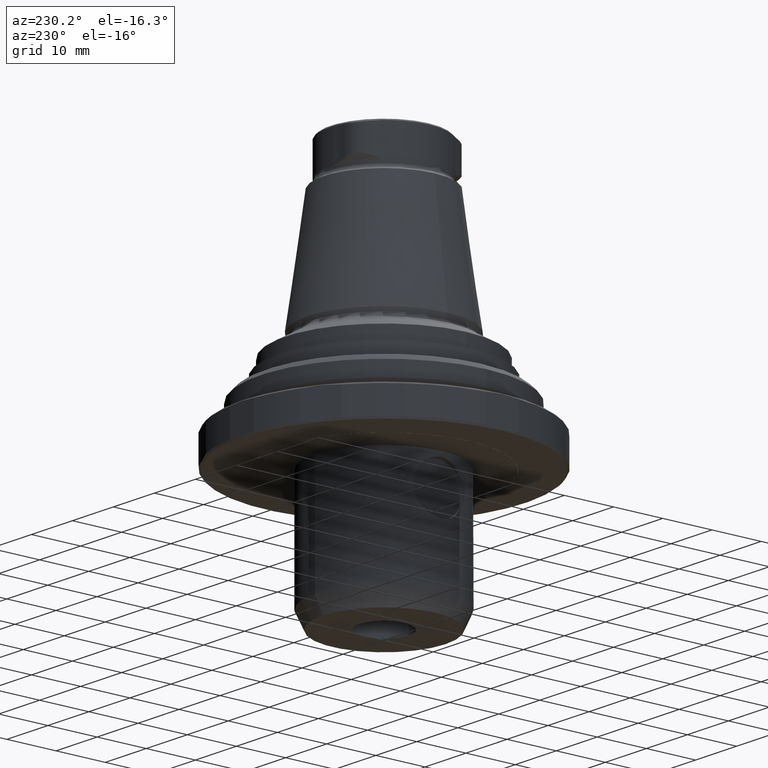
[diagram: clean part render]
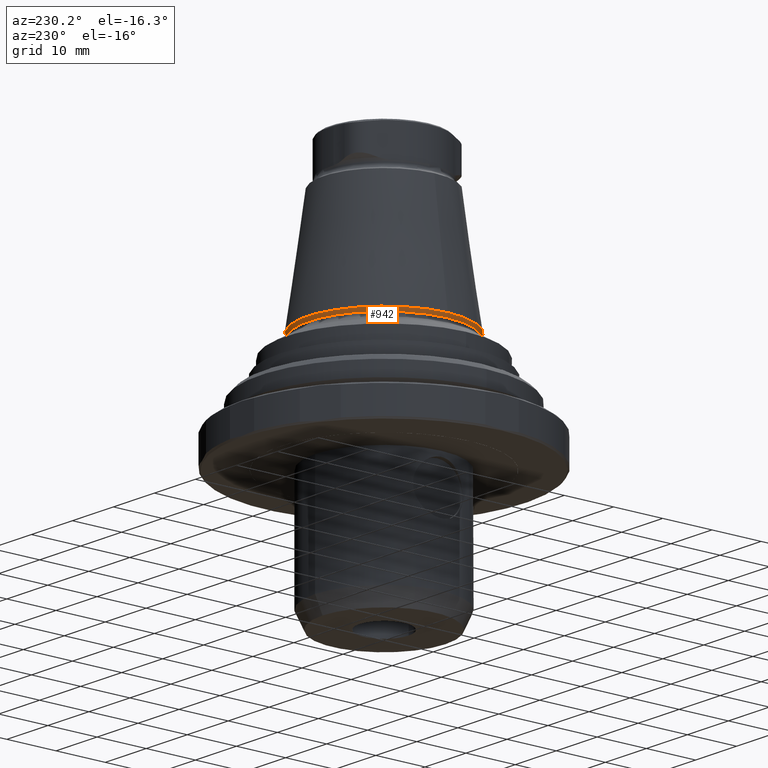
[diagram: same view with one face highlighted and labeled with its STEP entity id]
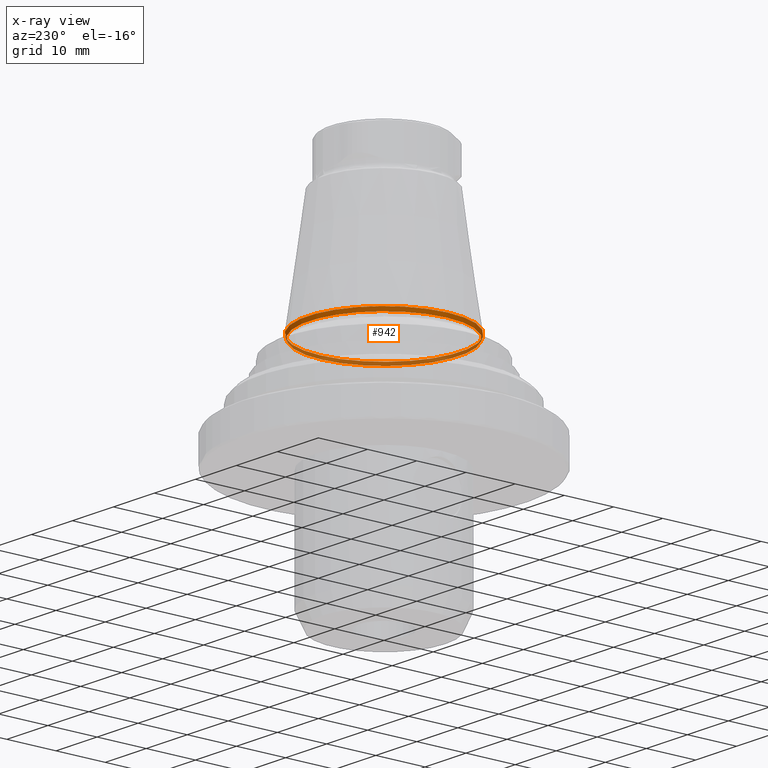
[diagram: x-ray of the same camera — body ghosted, the highlighted face saturated]
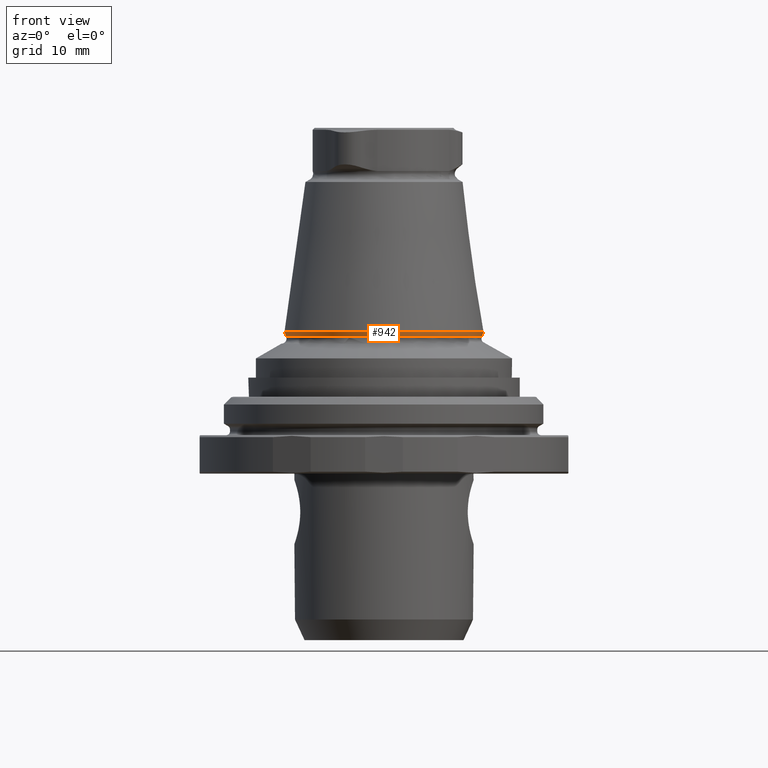
[diagram: same view with one face highlighted and labeled with its STEP entity id]
A machine part, auxiliary view. The second image highlights one B-rep face of the part: STEP entity #942.
The next image is the same camera in x-ray: the body ghosted, the highlighted face saturated — about 42% of this face is hidden behind the body in this view.
A second angle (front view) of the same face is appended — the face is thin or edge-on in the first view.
In plain terms, the highlighted conical surface has half-angle 20 deg.
Its self-contained STEP definition (entity closure, byte-faithful):
#34=CONICAL_SURFACE('',#1043,15.2632459033713,0.349065850398867);
#135=CIRCLE('',#1042,15.5400379337869);
#136=CIRCLE('',#1044,15.2632459033713);
#282=ORIENTED_EDGE('',*,*,#484,.T.);
#283=ORIENTED_EDGE('',*,*,#485,.F.);
#484=EDGE_CURVE('',#593,#593,#135,.T.);
#485=EDGE_CURVE('',#594,#594,#136,.T.);
#593=VERTEX_POINT('',#1640);
#594=VERTEX_POINT('',#1643);
#722=EDGE_LOOP('',(#282));
#723=EDGE_LOOP('',(#283));
#822=FACE_BOUND('',#722,.T.);
#823=FACE_BOUND('',#723,.T.);
#942=ADVANCED_FACE('',(#822,#823),#34,.T.);
#1042=AXIS2_PLACEMENT_3D('',#1639,#1225,#1226);
#1043=AXIS2_PLACEMENT_3D('',#1641,#1227,#1228);
#1044=AXIS2_PLACEMENT_3D('',#1642,#1229,#1230);
#1225=DIRECTION('',(1.27319154200133E-16,-7.79579225983867E-33,-1.));
#1226=DIRECTION('',(-1.,6.12303176911189E-17,-1.27319154200133E-16));
#1227=DIRECTION('',(-1.27319154200133E-16,7.79579225983867E-33,1.));
#1228=DIRECTION('',(1.,-6.12303176911189E-17,1.27319154200133E-16));
#1229=DIRECTION('',(1.27319154200133E-16,-7.79579225983867E-33,-1.));
#1230=DIRECTION('',(-1.,6.12303176911189E-17,-1.27319154200133E-16));
#1639=CARTESIAN_POINT('',(4.12079965727843E-15,-2.52317872156612E-31,15.1340949390776));
#1640=CARTESIAN_POINT('',(-15.5400379337869,9.51521459617813E-16,15.1340949390776));
#1641=CARTESIAN_POINT('',(4.21762330900619E-15,-2.58246415111917E-31,14.3736150856256));
#1642=CARTESIAN_POINT('',(4.21762330900619E-15,-2.58246415111917E-31,14.3736150856256));
#1643=CARTESIAN_POINT('',(-15.2632459033713,9.34573395661092E-16,14.3736150856256));